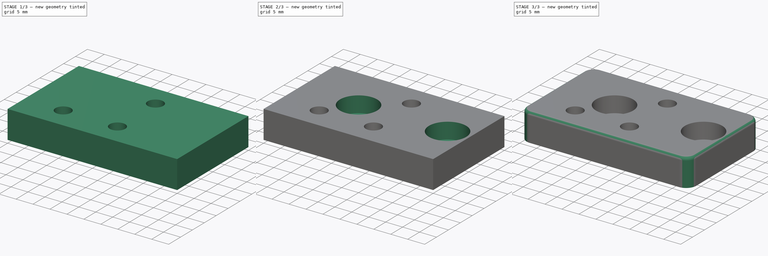
[diagram: build sequence overview — one tinted view per stage of 3, left to right]
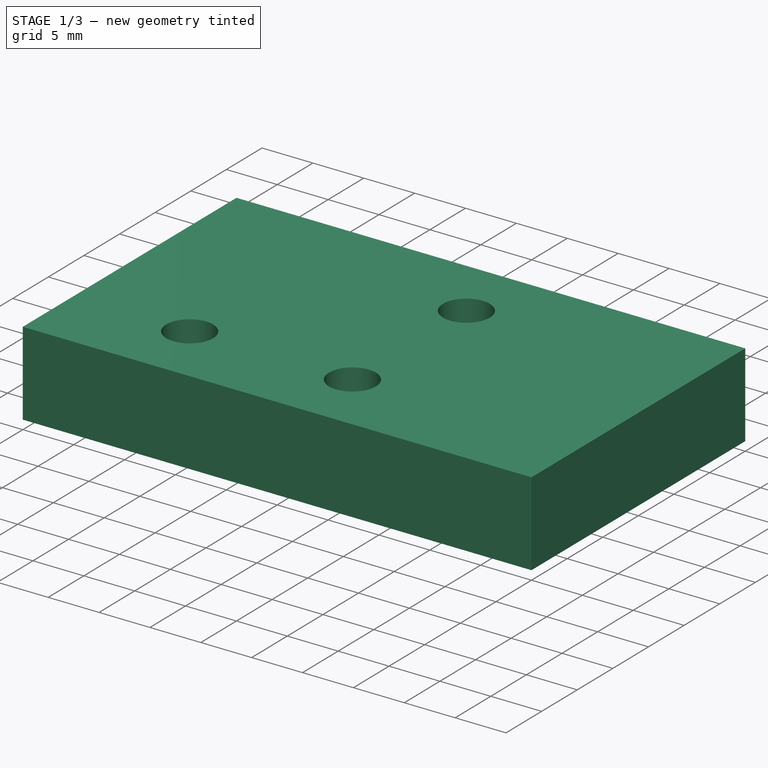
[diagram: stage 1 of 3 — iso view after this stage's code; geometry added in this stage tinted green]
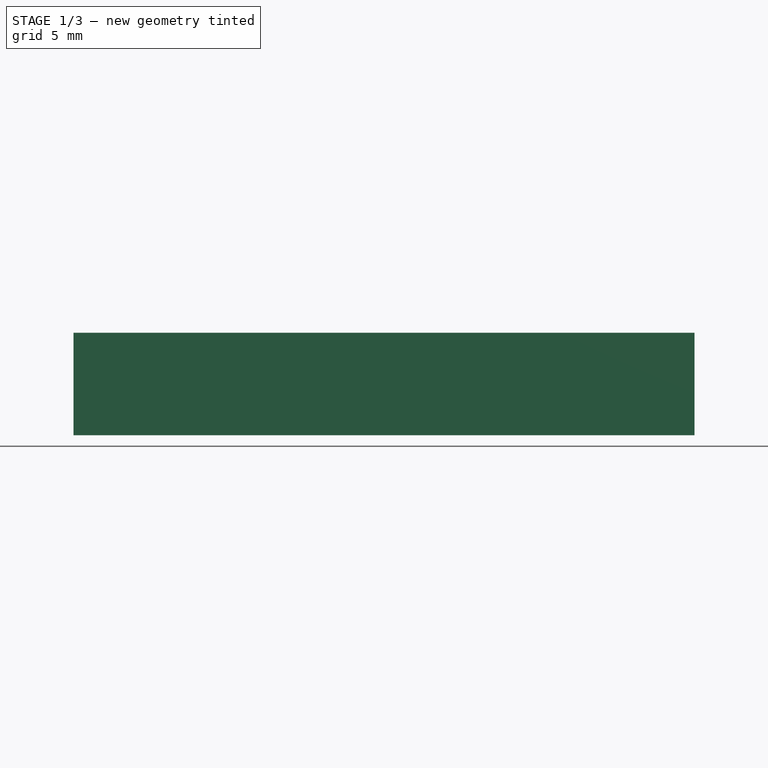
[diagram: stage 1 of 3 — front view after this stage's code; geometry added in this stage tinted green]
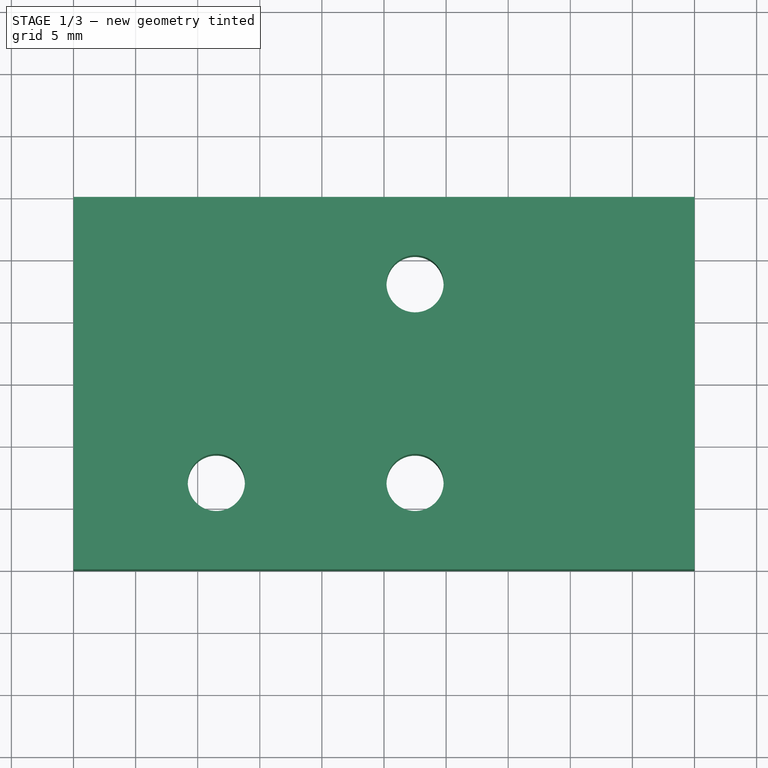
[diagram: stage 1 of 3 — top view after this stage's code; geometry added in this stage tinted green]
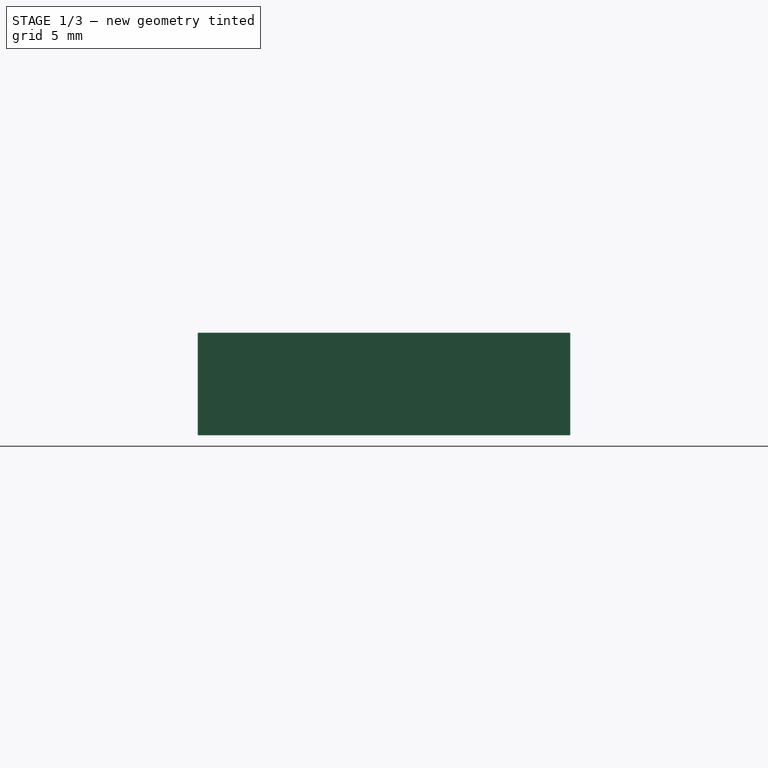
[diagram: stage 1 of 3 — right view after this stage's code; geometry added in this stage tinted green]
FCSTD DOCUMENT  (FreeCAD 0.17R8073 (Git))
Label: slider_mount
License: CreativeCommons Attribution-ShareAlike
LicenseURL: http://creativecommons.org/licenses/by-sa/4.0/
objects: Sketcher::SketchObject×4, PartDesign::Pocket×3, PartDesign::Fillet×2, PartDesign::Pad×1, PartDesign::Body×1
note: 15 computed .brp shape members not serialized (recipe doc carries the construction recipe); baked Part::Feature solids carry a one-line shape summary decoded from their .brp

FEATURE [Sketcher::SketchObject] Sketch
  MapMode = 5
  Support = -> [XY_Plane]
  sketch-geometry (4):
    g0: LineSegment StartX=0 StartY=0 StartZ=0 EndX=50 EndY=0 EndZ=0
    g1: LineSegment StartX=50 StartY=0 StartZ=0 EndX=50 EndY=30 EndZ=0
    g2: LineSegment StartX=50 StartY=30 StartZ=0 EndX=0 EndY=30 EndZ=0
    g3: LineSegment StartX=0 StartY=30 StartZ=0 EndX=0 EndY=0 EndZ=0
  constraints (11):
    c: Coincident(g0,g1)
    c: Coincident(g1,g2)
    c: Coincident(g2,g3)
    c: Coincident(g3,g0)
    c: Horizontal(g0)
    c: Horizontal(g2)
    c: Vertical(g1)
    c: Vertical(g3)
    c: Coincident(g0,g-1)
    c: DistanceY(g3,g3) = 30
    c: DistanceX(g0,g0) = 50
FEATURE [PartDesign::Pad] Pad
  Length = 8.25
  Length2 = 100
  Profile = -> Sketch
  Type = 0
FEATURE [Sketcher::SketchObject] Sketch001
  ExternalGeometry = -> [Pad]
  MapMode = 5
  Placement = pos=(0,0,8.25) rot=(0,0,1;0rad)
  Support = -> [Pad]
  sketch-geometry (7):
    g0: Circle CenterX=27.5 CenterY=23 CenterZ=0 NormalX=0 NormalY=0 NormalZ=1 Radius=2.3
    g1: Circle CenterX=27.5 CenterY=7 CenterZ=0 NormalX=0 NormalY=0 NormalZ=1 Radius=2.3
    g2: Circle CenterX=11.5 CenterY=7 CenterZ=0 NormalX=0 NormalY=0 NormalZ=1 Radius=2.3
    g3: LineSegment [constr] StartX=27.5 StartY=7 StartZ=0 EndX=27.5 EndY=0 EndZ=0
    g4: LineSegment [constr] StartX=27.5 StartY=23 StartZ=0 EndX=27.5 EndY=30 EndZ=0
    g5: LineSegment [constr] StartX=0 StartY=7 StartZ=0 EndX=11.5 EndY=7 EndZ=0
    g6: LineSegment [constr] StartX=27.5 StartY=7 StartZ=0 EndX=50 EndY=7 EndZ=0
  constraints (21):
    c: Radius(g1) = 2.3
    c: Equal(g1,g0)
    c: Equal(g1,g2)
    c: DistanceY(g1,g2) = 0
    c: DistanceX(g0,g1) = 0
    c: DistanceY(g1,g0) = 16
    c: DistanceX(g2,g1) = 16
    c: Vertical(g4)
    c: Vertical(g3)
    c: Equal(g4,g3)
    c: Coincident(g0,g4)
    c: Coincident(g1,g3)
    c: PointOnObject(g3,g-4)
    c: PointOnObject(g4,g-3)
    c: Horizontal(g6)
    c: Horizontal(g5)
    c: Coincident(g2,g5)
    c: Coincident(g6,g1)
    c: PointOnObject(g6,g-6)
    c: PointOnObject(g5,g-5)
    c: DistanceX(g6,g6) = 22.5
FEATURE [PartDesign::Pocket] Pocket
  BaseFeature = -> Pad
  Length = 5
  Profile = -> Sketch001
  Type = 1
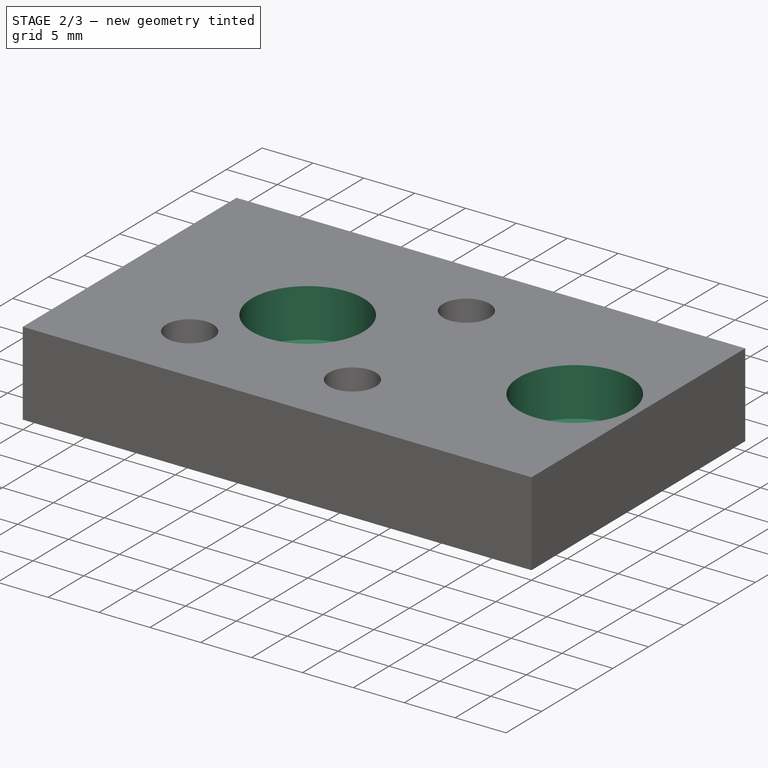
[diagram: stage 2 of 3 — iso view after this stage's code; geometry added in this stage tinted green]
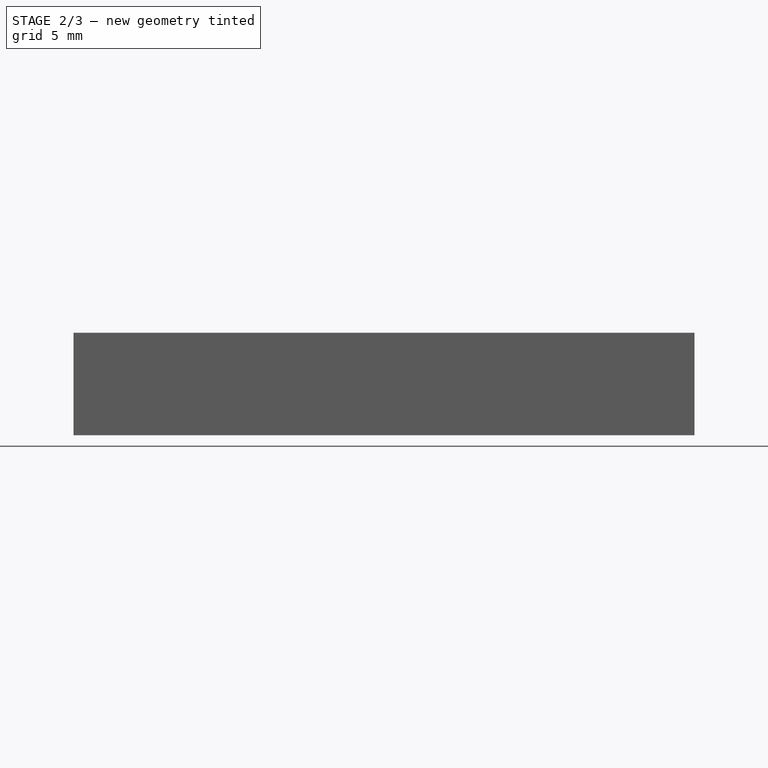
[diagram: stage 2 of 3 — front view after this stage's code; geometry added in this stage tinted green]
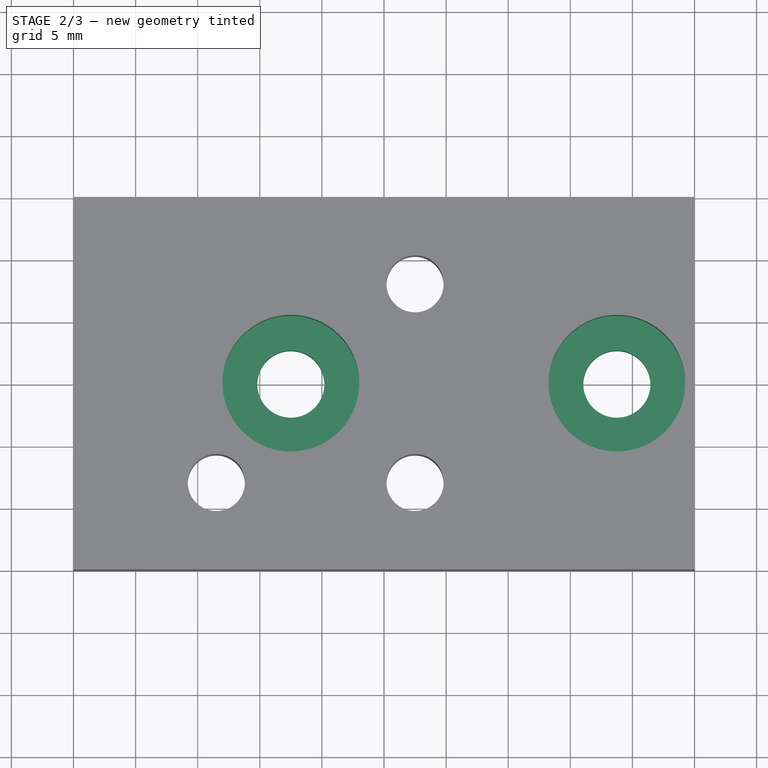
[diagram: stage 2 of 3 — top view after this stage's code; geometry added in this stage tinted green]
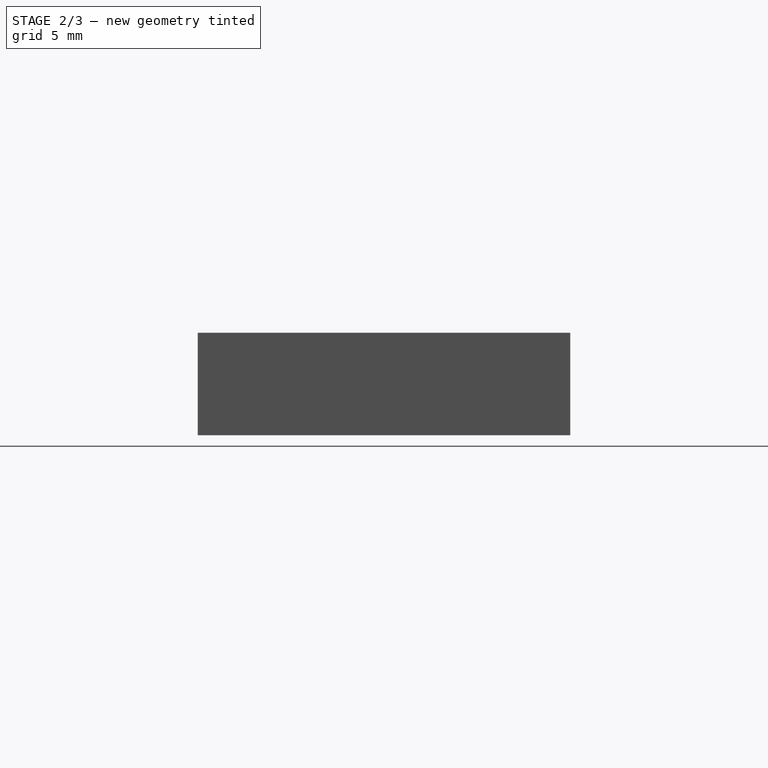
[diagram: stage 2 of 3 — right view after this stage's code; geometry added in this stage tinted green]
FEATURE [Sketcher::SketchObject] Sketch002
  ExternalGeometry = -> [Pocket]
  MapMode = 5
  Placement = pos=(0,0,8.25) rot=(0,0,1;0rad)
  Support = -> [Pocket]
  sketch-geometry (4):
    g0: LineSegment [constr] StartX=17.5 StartY=15 StartZ=0 EndX=43.75 EndY=15 EndZ=0
    g1: Circle CenterX=17.5 CenterY=15 CenterZ=0 NormalX=0 NormalY=0 NormalZ=1 Radius=2.7
    g2: Circle CenterX=43.75 CenterY=15 CenterZ=0 NormalX=0 NormalY=0 NormalZ=1 Radius=2.7
    g3: LineSegment [constr] StartX=43.75 StartY=15 StartZ=0 EndX=50 EndY=15 EndZ=0
  constraints (11):
    c: Horizontal(g0)
    c: Coincident(g0,g2)
    c: Coincident(g0,g1)
    c: Radius(g1) = 2.7
    c: Equal(g1,g2)
    c: DistanceY(g-1,g0) = 15
    c: Horizontal(g3)
    c: Coincident(g0,g3)
    c: PointOnObject(g3,g-3)
    c: DistanceX(g3,g3) = 6.25
    c: DistanceX(g0,g-4) = 10
FEATURE [PartDesign::Pocket] Pocket001
  BaseFeature = -> Pocket
  Length = 5
  Profile = -> Sketch002
  Type = 1
FEATURE [Sketcher::SketchObject] Sketch003
  ExternalGeometry = -> [Pocket001]
  MapMode = 5
  Placement = pos=(0,0,8.25) rot=(0,0,1;0rad)
  Support = -> [Pocket001]
  sketch-geometry (2):
    g0: Circle CenterX=43.75 CenterY=15 CenterZ=0 NormalX=0 NormalY=0 NormalZ=1 Radius=5.5
    g1: Circle CenterX=17.5 CenterY=15 CenterZ=0 NormalX=0 NormalY=0 NormalZ=1 Radius=5.5
  constraints (4):
    c: Coincident(g1,g-4)
    c: Coincident(g0,g-3)
    c: Radius(g1) = 5.5
    c: Equal(g1,g0)
FEATURE [PartDesign::Pocket] Pocket002
  BaseFeature = -> Pocket001
  Length = 4.75
  Profile = -> Sketch003
  Type = 0
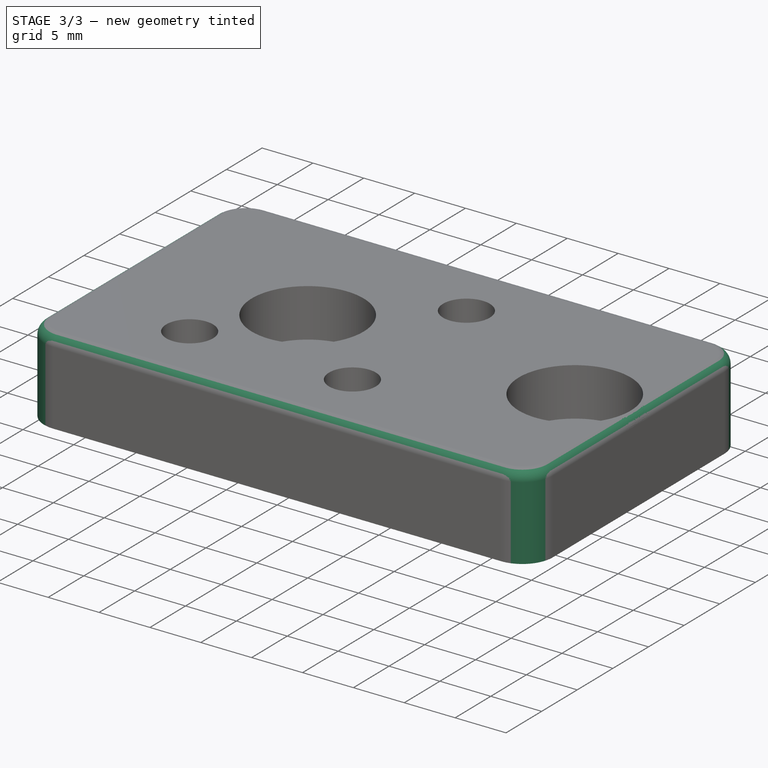
[diagram: stage 3 of 3 — iso view after this stage's code; geometry added in this stage tinted green]
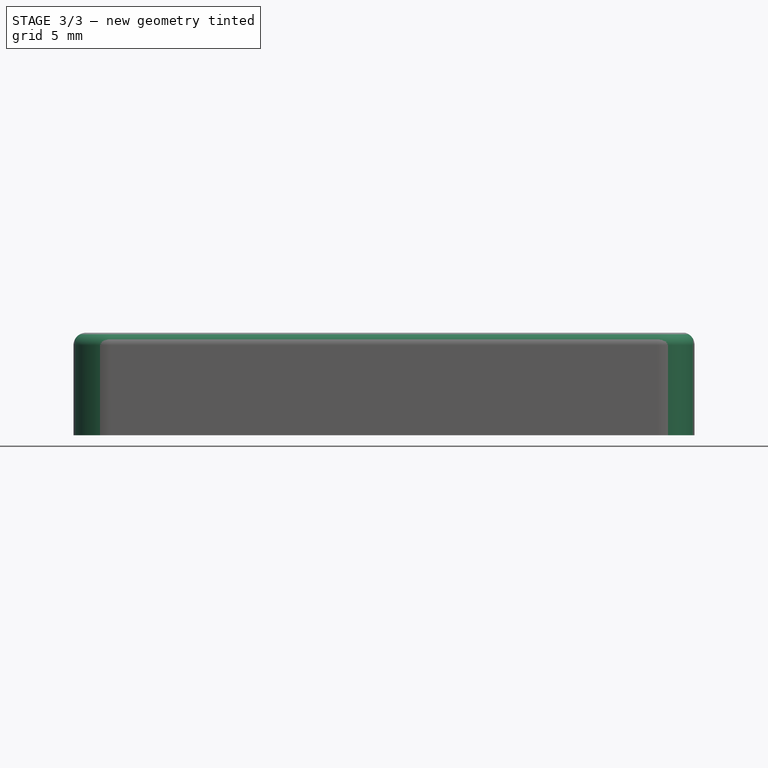
[diagram: stage 3 of 3 — front view after this stage's code; geometry added in this stage tinted green]
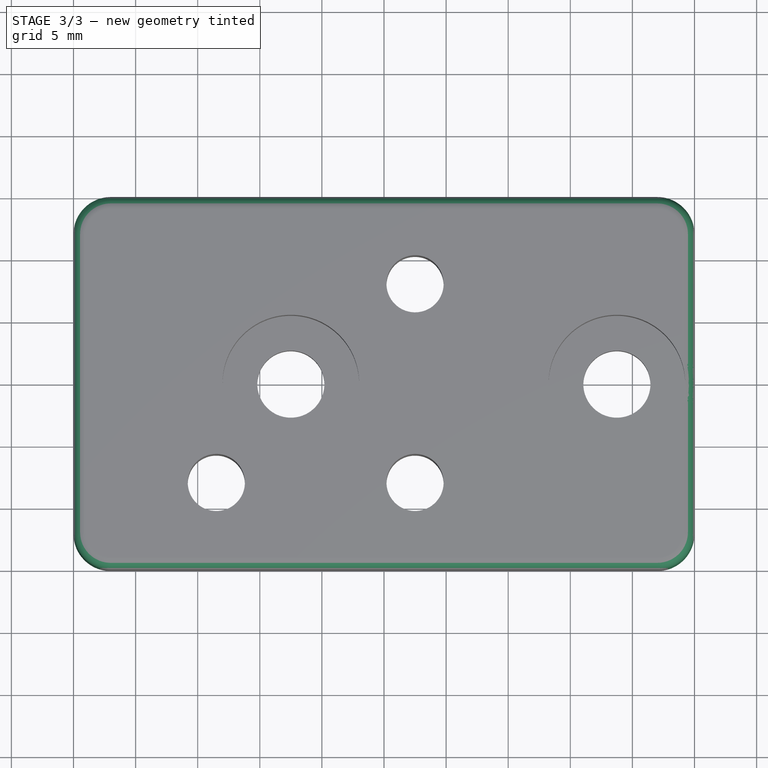
[diagram: stage 3 of 3 — top view after this stage's code; geometry added in this stage tinted green]
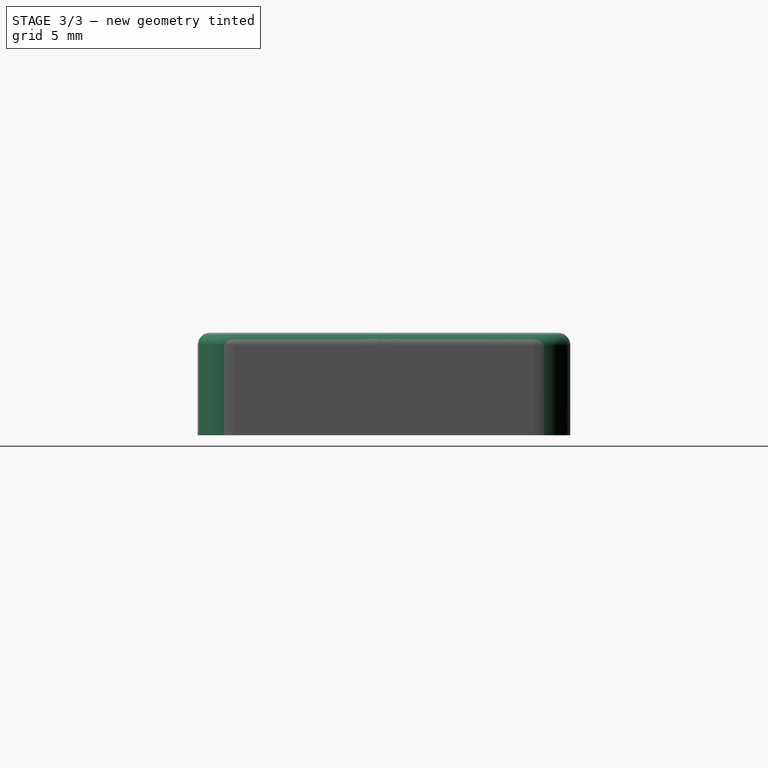
[diagram: stage 3 of 3 — right view after this stage's code; geometry added in this stage tinted green]
FEATURE [PartDesign::Fillet] Fillet
  Base = -> Pocket002 [Edge2,Edge8,Edge5,Edge1]
  BaseFeature = -> Pocket002
  Radius = 3
FEATURE [PartDesign::Fillet] Fillet001
  Base = -> Fillet [Edge21,Edge23,Edge25,Edge24,Edge22,Edge20,Edge4,Edge18]
  BaseFeature = -> Fillet
  Radius = 1
FEATURE [PartDesign::Body] Body
  Model = -> [Sketch,Pad,Sketch001,Pocket,Sketch002,Pocket001,Sketch003,Pocket002,Fillet,Fillet001]
  Origin = -> BodyOrigin
  Tip = -> Fillet001
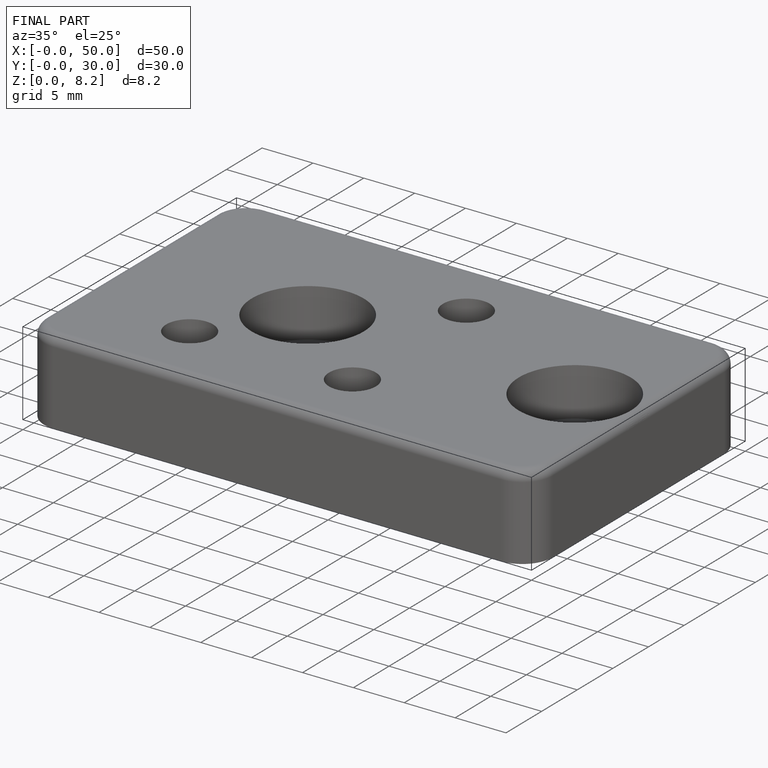
[diagram: finished part — iso view with bounding-box wireframe]
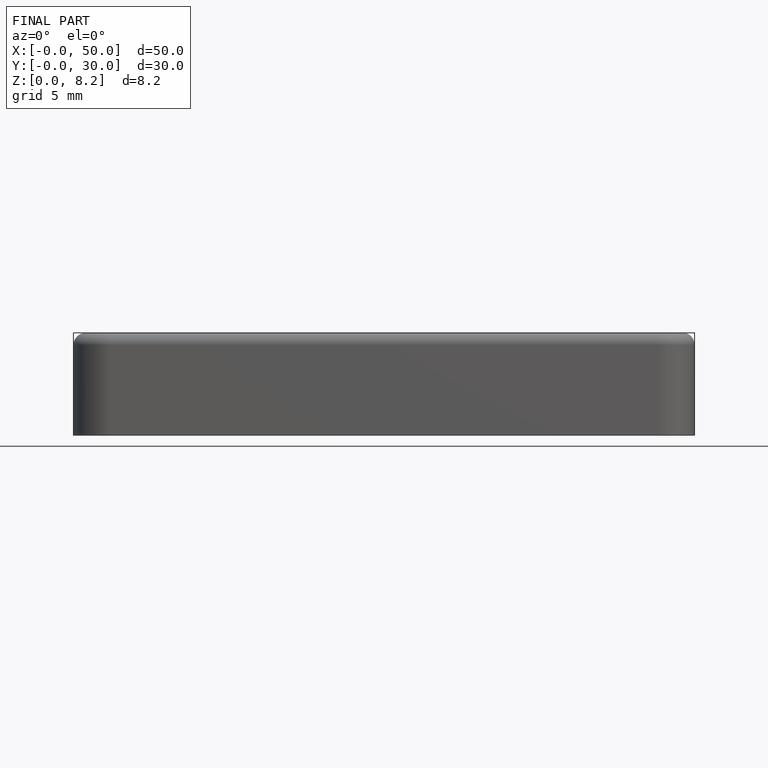
[diagram: finished part — front view with bounding-box wireframe]
